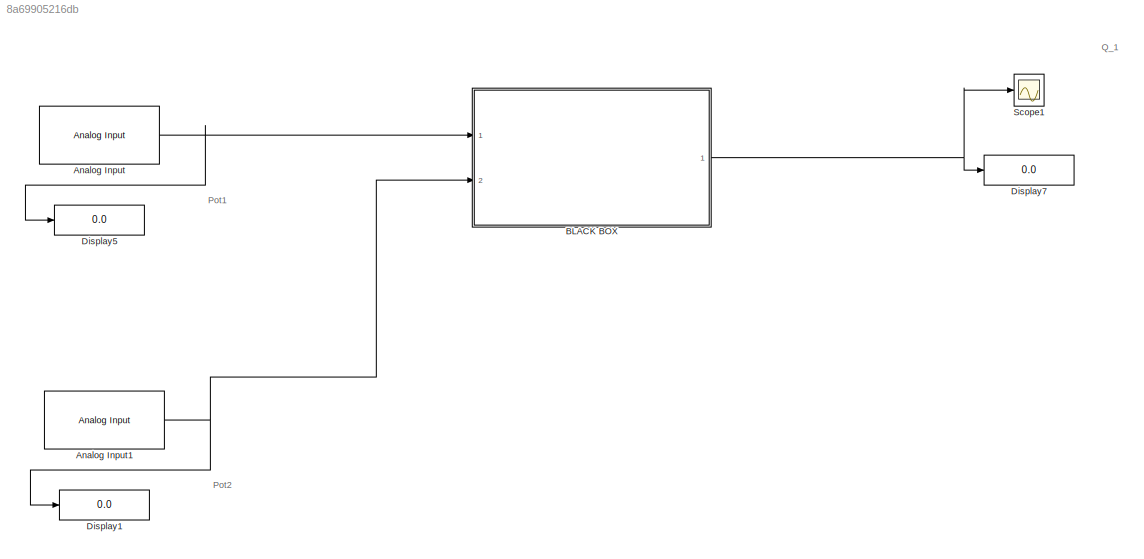
MODEL slx_8a69905216db
KIND model
CONFIG AbsTol = auto
CONFIG EnableMultiTasking = on
CONFIG FixedStep = auto
CONFIG MaxStep = auto
CONFIG MinStep = auto
CONFIG RelTol = 1e-3
CONFIG SampleTimeConstraint = Unconstrained
CONFIG SolverName = FixedStepAuto
CONFIG StartTime = 0.0
CONFIG StopTime = inf
BLOCK [Reference] Analog Input  REF=arduinolib/Analog Input
  Ports = [0, 1]
  SourceBlock = arduinolib/Analog Input
  SourceProductBaseCode = ARDUINO
  SourceType = Arduino Analog Input
BLOCK [Reference] Analog Input1  REF=arduinolib/Analog Input
  Ports = [0, 1]
  SourceBlock = arduinolib/Analog Input
  SourceProductBaseCode = ARDUINO
  SourceType = Arduino Analog Input
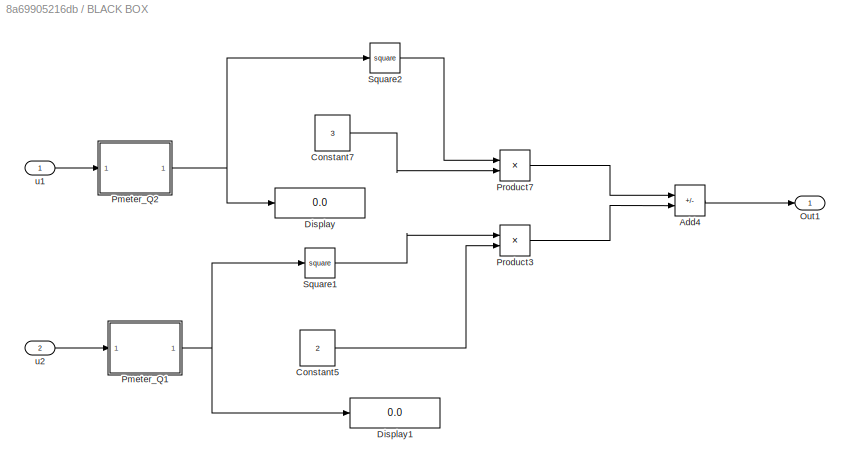
BLOCK [SubSystem] BLACK BOX
  Ports = [2, 1]
  RequestExecContextInheritance = off
BLOCK [Sum] BLACK BOX/Add4
  IconShape = rectangular
  Inputs = +-
  Ports = [2, 1]
BLOCK [Constant] BLACK BOX/Constant5
  Value = 2
BLOCK [Constant] BLACK BOX/Constant7
  Value = 3
BLOCK [Display] BLACK BOX/Display
  Decimation = 1
  Ports = [1]
BLOCK [Display] BLACK BOX/Display1
  Decimation = 1
  Ports = [1]
BLOCK [Outport] BLACK BOX/Out1
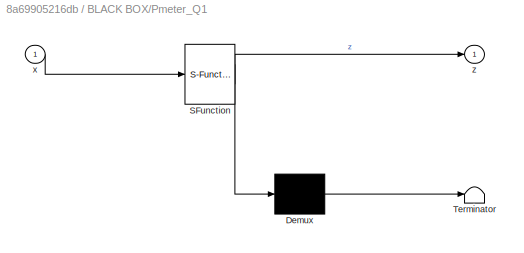
BLOCK [SubSystem] BLACK BOX/Pmeter_Q1
  ErrorFcn = Stateflow.Translate.translate
  PermitHierarchicalResolution = ExplicitOnly
  Ports = [1, 1]
  RequestExecContextInheritance = off
  SFBlockType = MATLAB Function
  TreatAsAtomicUnit = on
BLOCK [Demux] BLACK BOX/Pmeter_Q1/ Demux 
  Outputs = 1
  Ports = [1, 1]
BLOCK [S-Function] BLACK BOX/Pmeter_Q1/ SFunction 
  EnableBusSupport = on
  FunctionName = sf_sfun
  PortCounts = [1 2]
  Ports = [1, 2]
  SFcnIsStateOwnerBlock = off
  SFunctionDeploymentMode = off
  Tag = Stateflow S-Function 1
BLOCK [Terminator] BLACK BOX/Pmeter_Q1/ Terminator 
BLOCK [Inport] BLACK BOX/Pmeter_Q1/x
BLOCK [Outport] BLACK BOX/Pmeter_Q1/z
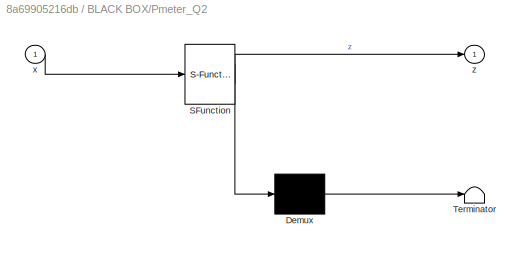
BLOCK [SubSystem] BLACK BOX/Pmeter_Q2
  ErrorFcn = Stateflow.Translate.translate
  PermitHierarchicalResolution = ExplicitOnly
  Ports = [1, 1]
  RequestExecContextInheritance = off
  SFBlockType = MATLAB Function
  TreatAsAtomicUnit = on
BLOCK [Demux] BLACK BOX/Pmeter_Q2/ Demux 
  Outputs = 1
  Ports = [1, 1]
BLOCK [S-Function] BLACK BOX/Pmeter_Q2/ SFunction 
  EnableBusSupport = on
  FunctionName = sf_sfun
  PortCounts = [1 2]
  Ports = [1, 2]
  SFcnIsStateOwnerBlock = off
  SFunctionDeploymentMode = off
  Tag = Stateflow S-Function 3
BLOCK [Terminator] BLACK BOX/Pmeter_Q2/ Terminator 
BLOCK [Inport] BLACK BOX/Pmeter_Q2/x
BLOCK [Outport] BLACK BOX/Pmeter_Q2/z
BLOCK [Product] BLACK BOX/Product3
  Ports = [2, 1]
BLOCK [Product] BLACK BOX/Product7
  Ports = [2, 1]
BLOCK [Math] BLACK BOX/Square1
  Operator = square
  Ports = [1, 1]
BLOCK [Math] BLACK BOX/Square2
  Operator = square
  Ports = [1, 1]
BLOCK [Inport] BLACK BOX/u1
BLOCK [Inport] BLACK BOX/u2
  Port = 2
BLOCK [Display] Display1
  Decimation = 1
  Ports = [1]
BLOCK [Display] Display5
  Decimation = 1
  Ports = [1]
BLOCK [Display] Display7
  Decimation = 1
  Ports = [1]
BLOCK [Scope] Scope1
  Floating = off
  NumInputPorts = 1
  Ports = [1]
  ScopeSpecificationString = Simulink.scopes.TimeScopeBlockCfg('CurrentConfiguration', extmgr.ConfigurationSet(extmgr.Configuration('Core','General UI',true),extmgr.Configuration('Core','Source UI',true),extmgr.Configuration('Sources','WiredSimulink',true,'DataLoggingVariableName','FSR_DATA','DataLogging',true,'DataLoggingDecimateData',true),extmgr.Configuration('Visuals','Time Domain',true,'SerializedDisplays',{struct('MinYL...<+1526ch>
ANNOTATION (root): Pot1
ANNOTATION (root): Pot2
ANNOTATION (root): Q_1
NET Analog Input1:1 -> BLACK BOX:2, Display1:1
NET Analog Input:1 -> BLACK BOX:1, Display5:1
LINE BLACK BOX/Add4:1 -> BLACK BOX/Out1:1
LINE BLACK BOX/Constant5:1 -> BLACK BOX/Product3:2
LINE BLACK BOX/Constant7:1 -> BLACK BOX/Product7:2
NET BLACK BOX/Pmeter_Q1:1 -> BLACK BOX/Display1:1, BLACK BOX/Square1:1
NET BLACK BOX/Pmeter_Q2:1 -> BLACK BOX/Display:1, BLACK BOX/Square2:1
LINE BLACK BOX/Product3:1 -> BLACK BOX/Add4:2
LINE BLACK BOX/Product7:1 -> BLACK BOX/Add4:1
LINE BLACK BOX/Square1:1 -> BLACK BOX/Product3:1
LINE BLACK BOX/Square2:1 -> BLACK BOX/Product7:1
LINE BLACK BOX/u1:1 -> BLACK BOX/Pmeter_Q2:1
LINE BLACK BOX/u2:1 -> BLACK BOX/Pmeter_Q1:1
NET BLACK BOX:1 -> Display7:1, Scope1:1
note: NET lines group one-source signal fan-out (src -> all destinations, sorted); 1:1 wires keep LINE
CHART BLACK BOX/Pmeter_Q2 states=1 transitions=1
  STATE_LABEL 'eML_blk_kernel()'
  STATE_LABEL 'SCRIPT:\nfunction z = fcn(x)\nz = 0;\nif x > 250 & x < 770\n    z = (double(x)*0.01);\nelse\n    z = double(0);\nend\nz = z;\n'
CHART BLACK BOX/Pmeter_Q1 states=1 transitions=1
  STATE_LABEL 'eML_blk_kernel()'
  STATE_LABEL 'SCRIPT:\nfunction z = fcn(x)\nz = 0;\nif x > 250 & x < 770\n    z = (double(x)*0.01);\nelse\n    z = double(0);\nend\nz = z;\n'
CHART  states=0 transitions=0
CHART  states=0 transitions=0
